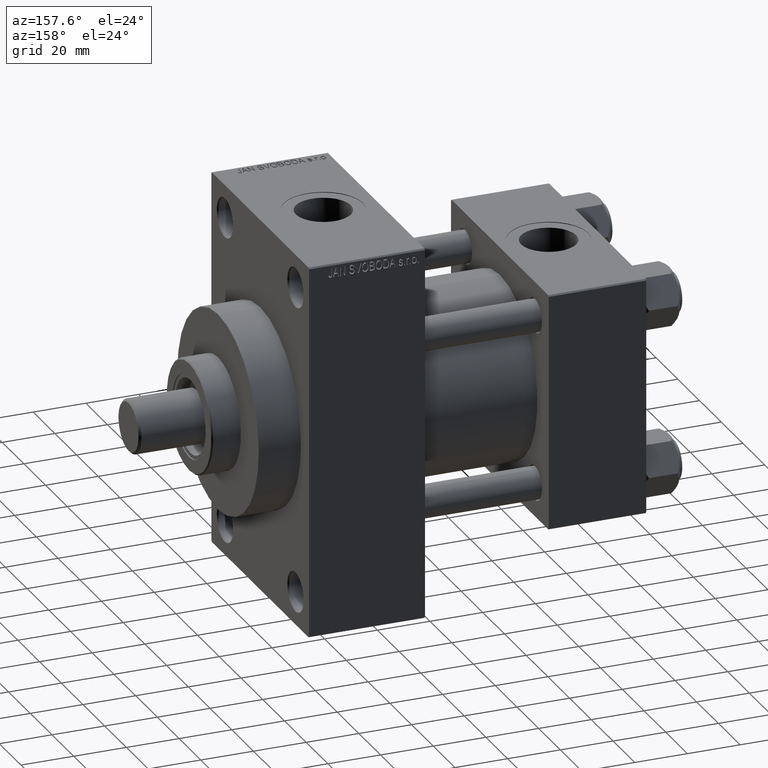
[diagram: clean part render]
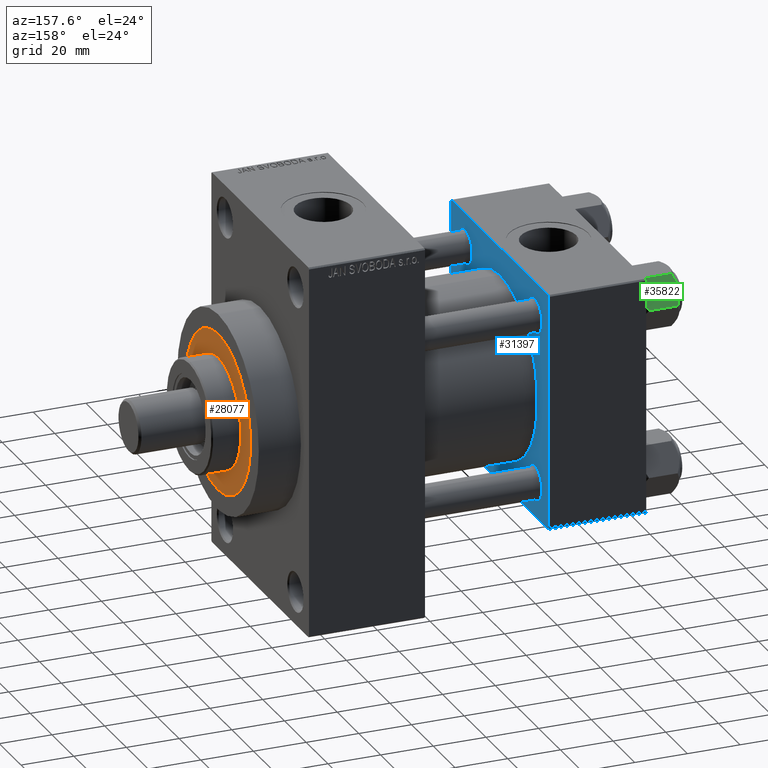
[diagram: same view with three faces highlighted in distinct colors, each labeled with its STEP entity id]
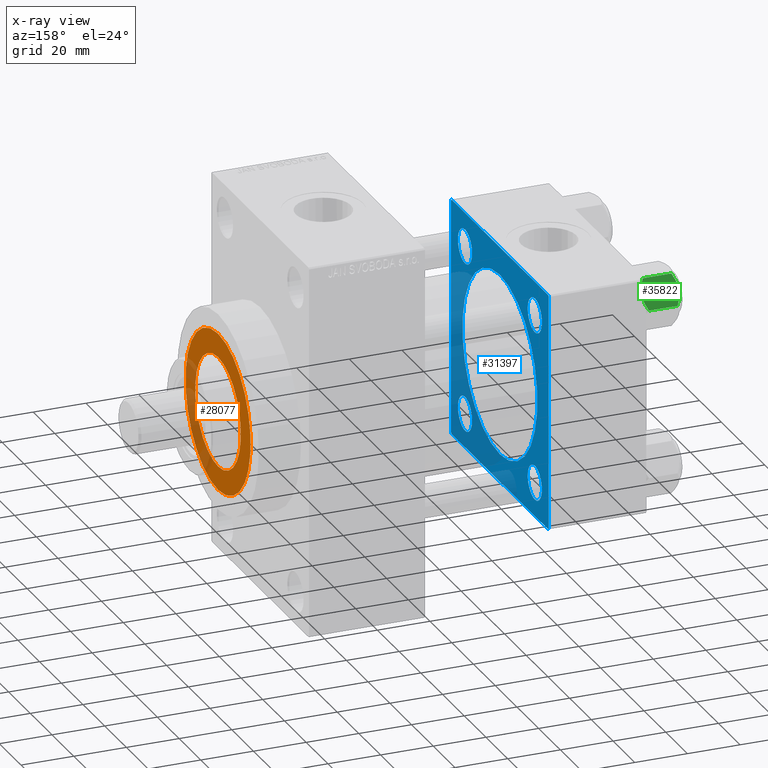
[diagram: x-ray of the same camera — body ghosted, the three highlighted faces saturated]
A machine part, auxiliary view with three faces highlighted in distinct colors.
The next image is the same camera in x-ray (body ghosted, the three faces saturated) — at least one of them is partly hidden behind the body in this view.
Their STEP definitions:

[orange] entity #28077 — the highlighted planar face has unit normal (1, -0, -0).
#646 = DIRECTION ( 'NONE',  ( 1.000000000000000000, 0.000000000000000000, 0.000000000000000000 ) ) ;
#1682 = DIRECTION ( 'NONE',  ( 1.000000000000000000, 0.000000000000000000, -0.000000000000000000 ) ) ;
#3050 = CIRCLE ( 'NONE', #29207, 30.00000000000000000 ) ;
#3537 = EDGE_CURVE ( 'NONE', #19312, #26547, #28069, .T. ) ;
#5543 = DIRECTION ( 'NONE',  ( 0.000000000000000000, 0.000000000000000000, 1.000000000000000000 ) ) ;
#6522 = ORIENTED_EDGE ( 'NONE', *, *, #3537, .F. ) ;
#8582 = CARTESIAN_POINT ( 'NONE',  ( 0.000000000000000000, 0.000000000000000000, 43.25999999999999801 ) ) ;
#8818 = DIRECTION ( 'NONE',  ( 0.000000000000000000, 0.000000000000000000, 1.000000000000000000 ) ) ;
#9635 = EDGE_LOOP ( 'NONE', ( #42970, #45175 ) ) ;
#10939 = DIRECTION ( 'NONE',  ( 0.000000000000000000, 0.000000000000000000, 1.000000000000000000 ) ) ;
#11066 = CARTESIAN_POINT ( 'NONE',  ( 0.000000000000000000, 0.000000000000000000, 43.25999999999999801 ) ) ;
#12624 = CARTESIAN_POINT ( 'NONE',  ( -30.00000000000000000, 0.000000000000000000, 43.25999999999999801 ) ) ;
#13024 = CIRCLE ( 'NONE', #14542, 21.00000000000000000 ) ;
#14445 = DIRECTION ( 'NONE',  ( 0.000000000000000000, 0.000000000000000000, 1.000000000000000000 ) ) ;
#14542 = AXIS2_PLACEMENT_3D ( 'NONE', #8582, #8818, #646 ) ;
#19312 = VERTEX_POINT ( 'NONE', #46845 ) ;
#21436 = EDGE_LOOP ( 'NONE', ( #30685, #6522 ) ) ;
#23399 = FACE_OUTER_BOUND ( 'NONE', #9635, .T. ) ;
#26116 = AXIS2_PLACEMENT_3D ( 'NONE', #41268, #33330, #27033 ) ;
#26547 = VERTEX_POINT ( 'NONE', #40112 ) ;
#27033 = DIRECTION ( 'NONE',  ( 1.000000000000000000, 0.000000000000000000, 0.000000000000000000 ) ) ;
#27720 = PLANE ( 'NONE',  #34194 ) ;
#28069 = CIRCLE ( 'NONE', #33451, 21.00000000000000000 ) ;
#28077 = ADVANCED_FACE ( 'NONE', ( #38096, #23399 ), #27720, .T. ) ;
#29207 = AXIS2_PLACEMENT_3D ( 'NONE', #11066, #14445, #43866 ) ;
#30106 = VERTEX_POINT ( 'NONE', #34161 ) ;
#30685 = ORIENTED_EDGE ( 'NONE', *, *, #46094, .F. ) ;
#31577 = CARTESIAN_POINT ( 'NONE',  ( 0.000000000000000000, 0.000000000000000000, 43.25999999999999801 ) ) ;
#33330 = DIRECTION ( 'NONE',  ( 0.000000000000000000, 0.000000000000000000, 1.000000000000000000 ) ) ;
#33451 = AXIS2_PLACEMENT_3D ( 'NONE', #37443, #10939, #36505 ) ;
#34161 = CARTESIAN_POINT ( 'NONE',  ( 30.00000000000000000, 3.673940397442059178E-15, 43.25999999999999801 ) ) ;
#34194 = AXIS2_PLACEMENT_3D ( 'NONE', #31577, #5543, #1682 ) ;
#34665 = VERTEX_POINT ( 'NONE', #12624 ) ;
#36505 = DIRECTION ( 'NONE',  ( 1.000000000000000000, 0.000000000000000000, 0.000000000000000000 ) ) ;
#37443 = CARTESIAN_POINT ( 'NONE',  ( 0.000000000000000000, 0.000000000000000000, 43.25999999999999801 ) ) ;
#38096 = FACE_BOUND ( 'NONE', #21436, .T. ) ;
#40112 = CARTESIAN_POINT ( 'NONE',  ( -21.00000000000000000, 0.000000000000000000, 43.25999999999999801 ) ) ;
#41268 = CARTESIAN_POINT ( 'NONE',  ( 0.000000000000000000, 0.000000000000000000, 43.25999999999999801 ) ) ;
#42970 = ORIENTED_EDGE ( 'NONE', *, *, #47543, .T. ) ;
#43800 = CIRCLE ( 'NONE', #26116, 30.00000000000000000 ) ;
#43866 = DIRECTION ( 'NONE',  ( 1.000000000000000000, 0.000000000000000000, 0.000000000000000000 ) ) ;
#45175 = ORIENTED_EDGE ( 'NONE', *, *, #46639, .T. ) ;
#46094 = EDGE_CURVE ( 'NONE', #26547, #19312, #13024, .T. ) ;
#46639 = EDGE_CURVE ( 'NONE', #30106, #34665, #43800, .T. ) ;
#46845 = CARTESIAN_POINT ( 'NONE',  ( 21.00000000000000000, 2.571758278209441661E-15, 43.25999999999999801 ) ) ;
#47543 = EDGE_CURVE ( 'NONE', #34665, #30106, #3050, .T. ) ;

[blue] entity #31397 — the highlighted planar face has unit normal (-1, 0, 0).
#3 = LINE ( 'NONE', #18563, #39709 ) ;
#287 = VERTEX_POINT ( 'NONE', #38012 ) ;
#677 = FACE_BOUND ( 'NONE', #33055, .T. ) ;
#1069 = LINE ( 'NONE', #34335, #35992 ) ;
#1385 = VERTEX_POINT ( 'NONE', #37096 ) ;
#1591 = CARTESIAN_POINT ( 'NONE',  ( 37.00000000000000000, -32.14999999999997726, -25.65000000000006253 ) ) ;
#1798 = EDGE_CURVE ( 'NONE', #18763, #35943, #14928, .T. ) ;
#1897 = DIRECTION ( 'NONE',  ( 0.000000000000000000, 0.000000000000000000, 1.000000000000000000 ) ) ;
#1926 = DIRECTION ( 'NONE',  ( 0.000000000000000000, 0.000000000000000000, 1.000000000000000000 ) ) ;
#2030 = EDGE_CURVE ( 'NONE', #24943, #287, #46272, .T. ) ;
#2373 = ORIENTED_EDGE ( 'NONE', *, *, #22286, .F. ) ;
#3282 = CARTESIAN_POINT ( 'NONE',  ( 37.00000000000000000, 32.14999999999999147, 25.64999999999999858 ) ) ;
#3588 = FACE_BOUND ( 'NONE', #45203, .T. ) ;
#4108 = EDGE_LOOP ( 'NONE', ( #4754, #43251 ) ) ;
#4754 = ORIENTED_EDGE ( 'NONE', *, *, #39872, .T. ) ;
#4909 = CARTESIAN_POINT ( 'NONE',  ( 37.00000000000000000, 44.99999999999998579, -44.99999999999998579 ) ) ;
#4939 = VERTEX_POINT ( 'NONE', #35916 ) ;
#5451 = DIRECTION ( 'NONE',  ( -1.000000000000000000, 0.000000000000000000, -0.000000000000000000 ) ) ;
#5457 = EDGE_LOOP ( 'NONE', ( #6555, #45290 ) ) ;
#5626 = DIRECTION ( 'NONE',  ( -1.000000000000000000, 0.000000000000000000, -0.000000000000000000 ) ) ;
#5640 = DIRECTION ( 'NONE',  ( 0.000000000000000000, -1.000000000000000000, -1.541976423090495387E-16 ) ) ;
#5675 = DIRECTION ( 'NONE',  ( -1.000000000000000000, 0.000000000000000000, -0.000000000000000000 ) ) ;
#5883 = VECTOR ( 'NONE', #43689, 1000.000000000000000 ) ;
#5905 = EDGE_CURVE ( 'NONE', #12021, #37893, #3, .T. ) ;
#6315 = EDGE_CURVE ( 'NONE', #29573, #40298, #24296, .T. ) ;
#6555 = ORIENTED_EDGE ( 'NONE', *, *, #19343, .T. ) ;
#7465 = DIRECTION ( 'NONE',  ( -0.000000000000000000, 0.7071067811865474617, 0.7071067811865474617 ) ) ;
#7910 = CARTESIAN_POINT ( 'NONE',  ( 37.00000000000000000, 0.000000000000000000, 0.000000000000000000 ) ) ;
#8672 = EDGE_CURVE ( 'NONE', #31960, #37893, #47299, .T. ) ;
#8980 = ORIENTED_EDGE ( 'NONE', *, *, #8672, .F. ) ;
#9211 = AXIS2_PLACEMENT_3D ( 'NONE', #9407, #10111, #1926 ) ;
#9407 = CARTESIAN_POINT ( 'NONE',  ( 37.00000000000000000, 32.14999999999999147, -32.15000000000000568 ) ) ;
#9580 = EDGE_CURVE ( 'NONE', #1385, #43032, #23640, .T. ) ;
#10111 = DIRECTION ( 'NONE',  ( -1.000000000000000000, 0.000000000000000000, -0.000000000000000000 ) ) ;
#10343 = AXIS2_PLACEMENT_3D ( 'NONE', #42962, #14974, #44151 ) ;
#10409 = EDGE_CURVE ( 'NONE', #43155, #24943, #1069, .T. ) ;
#10819 = FACE_BOUND ( 'NONE', #39534, .T. ) ;
#11817 = CIRCLE ( 'NONE', #18788, 6.500000000000005329 ) ;
#11905 = CARTESIAN_POINT ( 'NONE',  ( 37.00000000000000000, -45.00000000000000711, 45.00000000000000000 ) ) ;
#11950 = AXIS2_PLACEMENT_3D ( 'NONE', #38482, #5451, #15824 ) ;
#12021 = VERTEX_POINT ( 'NONE', #44358 ) ;
#12111 = CARTESIAN_POINT ( 'NONE',  ( 37.00000000000000000, 32.14999999999999147, 32.15000000000000568 ) ) ;
#12383 = LINE ( 'NONE', #11905, #26782 ) ;
#12866 = DIRECTION ( 'NONE',  ( 0.000000000000000000, 7.709882115452476934E-17, -1.000000000000000000 ) ) ;
#13704 = CARTESIAN_POINT ( 'NONE',  ( 37.00000000000000000, 44.99999999999998579, -44.49999999999995737 ) ) ;
#14192 = CARTESIAN_POINT ( 'NONE',  ( 37.00000000000000000, -45.00000000000000711, 44.49999999999997158 ) ) ;
#14415 = CARTESIAN_POINT ( 'NONE',  ( 37.00000000000000000, 32.14999999999999147, -25.64999999999999858 ) ) ;
#14928 = CIRCLE ( 'NONE', #31872, 6.499999999999950262 ) ;
#14974 = DIRECTION ( 'NONE',  ( 1.000000000000000000, -0.000000000000000000, 0.000000000000000000 ) ) ;
#15137 = DIRECTION ( 'NONE',  ( -1.000000000000000000, 0.000000000000000000, -0.000000000000000000 ) ) ;
#15382 = DIRECTION ( 'NONE',  ( -0.000000000000000000, 0.000000000000000000, 1.000000000000000000 ) ) ;
#15824 = DIRECTION ( 'NONE',  ( 0.000000000000000000, 0.000000000000000000, 1.000000000000000000 ) ) ;
#16481 = LINE ( 'NONE', #4909, #39262 ) ;
#17476 = AXIS2_PLACEMENT_3D ( 'NONE', #38659, #5626, #20341 ) ;
#17540 = AXIS2_PLACEMENT_3D ( 'NONE', #34696, #28169, #31069 ) ;
#17822 = DIRECTION ( 'NONE',  ( -0.000000000000000000, -0.7071067811865425767, -0.7071067811865524577 ) ) ;
#17929 = EDGE_CURVE ( 'NONE', #35943, #18763, #26119, .T. ) ;
#18290 = PLANE ( 'NONE',  #31898 ) ;
#18532 = ORIENTED_EDGE ( 'NONE', *, *, #27541, .T. ) ;
#18563 = CARTESIAN_POINT ( 'NONE',  ( 37.00000000000000000, 44.99999999999998579, -44.49999999999998579 ) ) ;
#18763 = VERTEX_POINT ( 'NONE', #1591 ) ;
#18788 = AXIS2_PLACEMENT_3D ( 'NONE', #12111, #44440, #26351 ) ;
#19343 = EDGE_CURVE ( 'NONE', #26408, #39964, #42315, .T. ) ;
#20002 = CARTESIAN_POINT ( 'NONE',  ( 37.00000000000000000, -32.14999999999997726, 32.15000000000001279 ) ) ;
#20341 = DIRECTION ( 'NONE',  ( 0.000000000000000000, 0.000000000000000000, 1.000000000000000000 ) ) ;
#20532 = EDGE_CURVE ( 'NONE', #12021, #47658, #16481, .T. ) ;
#21272 = CARTESIAN_POINT ( 'NONE',  ( 37.00000000000000000, -32.14999999999997726, -32.15000000000001279 ) ) ;
#22275 = AXIS2_PLACEMENT_3D ( 'NONE', #46174, #5675, #31718 ) ;
#22286 = EDGE_CURVE ( 'NONE', #31888, #4939, #36274, .T. ) ;
#22354 = EDGE_CURVE ( 'NONE', #31960, #43155, #46262, .T. ) ;
#22921 = DIRECTION ( 'NONE',  ( 0.000000000000000000, 0.000000000000000000, 1.000000000000000000 ) ) ;
#23277 = CARTESIAN_POINT ( 'NONE',  ( 37.00000000000000000, -44.49999999999998579, -45.00000000000000000 ) ) ;
#23631 = VERTEX_POINT ( 'NONE', #41418 ) ;
#23640 = CIRCLE ( 'NONE', #17476, 6.499999999999950262 ) ;
#23698 = AXIS2_PLACEMENT_3D ( 'NONE', #20002, #31310, #1897 ) ;
#24233 = ORIENTED_EDGE ( 'NONE', *, *, #17929, .T. ) ;
#24296 = CIRCLE ( 'NONE', #11950, 6.500000000000005329 ) ;
#24943 = VERTEX_POINT ( 'NONE', #29275 ) ;
#26119 = CIRCLE ( 'NONE', #22275, 6.499999999999950262 ) ;
#26351 = DIRECTION ( 'NONE',  ( 0.000000000000000000, 0.000000000000000000, 1.000000000000000000 ) ) ;
#26408 = VERTEX_POINT ( 'NONE', #46146 ) ;
#26782 = VECTOR ( 'NONE', #12866, 1000.000000000000000 ) ;
#27541 = EDGE_CURVE ( 'NONE', #40298, #29573, #11817, .T. ) ;
#28150 = ORIENTED_EDGE ( 'NONE', *, *, #30385, .T. ) ;
#28169 = DIRECTION ( 'NONE',  ( -1.000000000000000000, 0.000000000000000000, -0.000000000000000000 ) ) ;
#28554 = VECTOR ( 'NONE', #46500, 1000.000000000000114 ) ;
#28975 = CARTESIAN_POINT ( 'NONE',  ( 37.00000000000000000, 44.99999999999998579, 45.00000000000001421 ) ) ;
#29275 = CARTESIAN_POINT ( 'NONE',  ( 37.00000000000000000, -44.49999999999995737, 45.00000000000000000 ) ) ;
#29573 = VERTEX_POINT ( 'NONE', #41582 ) ;
#30137 = DIRECTION ( 'NONE',  ( 1.000000000000000000, -0.000000000000000000, 0.000000000000000000 ) ) ;
#30385 = EDGE_CURVE ( 'NONE', #23631, #47658, #30728, .T. ) ;
#30471 = ORIENTED_EDGE ( 'NONE', *, *, #1798, .T. ) ;
#30728 = LINE ( 'NONE', #23277, #41074 ) ;
#31020 = ORIENTED_EDGE ( 'NONE', *, *, #5905, .T. ) ;
#31069 = DIRECTION ( 'NONE',  ( 0.000000000000000000, 0.000000000000000000, 1.000000000000000000 ) ) ;
#31129 = CIRCLE ( 'NONE', #10343, 34.50000000000000000 ) ;
#31310 = DIRECTION ( 'NONE',  ( -1.000000000000000000, 0.000000000000000000, -0.000000000000000000 ) ) ;
#31397 = ADVANCED_FACE ( 'NONE', ( #10819, #33008, #37322, #3588, #677, #36864 ), #18290, .F. ) ;
#31718 = DIRECTION ( 'NONE',  ( 0.000000000000000000, 0.000000000000000000, 1.000000000000000000 ) ) ;
#31872 = AXIS2_PLACEMENT_3D ( 'NONE', #21272, #35004, #31877 ) ;
#31877 = DIRECTION ( 'NONE',  ( 0.000000000000000000, 0.000000000000000000, 1.000000000000000000 ) ) ;
#31888 = VERTEX_POINT ( 'NONE', #31939 ) ;
#31898 = AXIS2_PLACEMENT_3D ( 'NONE', #7910, #15137, #15382 ) ;
#31939 = CARTESIAN_POINT ( 'NONE',  ( 37.00000000000000000, -2.602085213965210642E-15, 34.50000000000000000 ) ) ;
#31960 = VERTEX_POINT ( 'NONE', #38932 ) ;
#32519 = CARTESIAN_POINT ( 'NONE',  ( 37.00000000000000000, -32.14999999999997726, -38.64999999999996305 ) ) ;
#33008 = FACE_BOUND ( 'NONE', #5457, .T. ) ;
#33055 = EDGE_LOOP ( 'NONE', ( #2373, #38224 ) ) ;
#33078 = EDGE_CURVE ( 'NONE', #4939, #31888, #31129, .T. ) ;
#33445 = CARTESIAN_POINT ( 'NONE',  ( 37.00000000000000000, 44.49999999999998579, 45.00000000000001421 ) ) ;
#33997 = CARTESIAN_POINT ( 'NONE',  ( 37.00000000000000000, -2.602085213965210642E-15, 0.000000000000000000 ) ) ;
#34335 = CARTESIAN_POINT ( 'NONE',  ( 37.00000000000000000, 44.99999999999998579, 45.00000000000001421 ) ) ;
#34696 = CARTESIAN_POINT ( 'NONE',  ( 37.00000000000000000, 32.14999999999999147, -32.15000000000000568 ) ) ;
#35004 = DIRECTION ( 'NONE',  ( -1.000000000000000000, 0.000000000000000000, -0.000000000000000000 ) ) ;
#35639 = ORIENTED_EDGE ( 'NONE', *, *, #10409, .T. ) ;
#35916 = CARTESIAN_POINT ( 'NONE',  ( 37.00000000000000000, 1.622946243093158675E-15, -34.50000000000000000 ) ) ;
#35932 = DIRECTION ( 'NONE',  ( 0.000000000000000000, -1.000000000000000000, -1.541976423090495633E-16 ) ) ;
#35943 = VERTEX_POINT ( 'NONE', #32519 ) ;
#35992 = VECTOR ( 'NONE', #5640, 1000.000000000000000 ) ;
#36274 = CIRCLE ( 'NONE', #41622, 34.50000000000000000 ) ;
#36864 = FACE_OUTER_BOUND ( 'NONE', #37712, .T. ) ;
#37096 = CARTESIAN_POINT ( 'NONE',  ( 37.00000000000000000, -32.14999999999997726, 38.64999999999996305 ) ) ;
#37322 = FACE_BOUND ( 'NONE', #4108, .T. ) ;
#37712 = EDGE_LOOP ( 'NONE', ( #40673, #31020, #8980, #44881, #35639, #38765, #38704, #28150 ) ) ;
#37893 = VERTEX_POINT ( 'NONE', #13704 ) ;
#38012 = CARTESIAN_POINT ( 'NONE',  ( 37.00000000000000000, -45.00000000000000711, 44.49999999999997158 ) ) ;
#38224 = ORIENTED_EDGE ( 'NONE', *, *, #33078, .F. ) ;
#38482 = CARTESIAN_POINT ( 'NONE',  ( 37.00000000000000000, 32.14999999999999147, 32.15000000000000568 ) ) ;
#38659 = CARTESIAN_POINT ( 'NONE',  ( 37.00000000000000000, -32.14999999999997726, 32.15000000000001279 ) ) ;
#38704 = ORIENTED_EDGE ( 'NONE', *, *, #43499, .T. ) ;
#38765 = ORIENTED_EDGE ( 'NONE', *, *, #2030, .T. ) ;
#38932 = CARTESIAN_POINT ( 'NONE',  ( 37.00000000000000000, 44.99999999999998579, 44.50000000000001421 ) ) ;
#38997 = CARTESIAN_POINT ( 'NONE',  ( 37.00000000000000000, -44.49999999999995737, -45.00000000000000000 ) ) ;
#39262 = VECTOR ( 'NONE', #35932, 1000.000000000000000 ) ;
#39534 = EDGE_LOOP ( 'NONE', ( #24233, #30471 ) ) ;
#39709 = VECTOR ( 'NONE', #7465, 1000.000000000000114 ) ;
#39836 = EDGE_CURVE ( 'NONE', #39964, #26408, #41385, .T. ) ;
#39872 = EDGE_CURVE ( 'NONE', #43032, #1385, #44489, .T. ) ;
#39964 = VERTEX_POINT ( 'NONE', #14415 ) ;
#40298 = VERTEX_POINT ( 'NONE', #3282 ) ;
#40673 = ORIENTED_EDGE ( 'NONE', *, *, #20532, .F. ) ;
#41074 = VECTOR ( 'NONE', #44731, 1000.000000000000114 ) ;
#41077 = VECTOR ( 'NONE', #17822, 1000.000000000000114 ) ;
#41385 = CIRCLE ( 'NONE', #17540, 6.500000000000005329 ) ;
#41418 = CARTESIAN_POINT ( 'NONE',  ( 37.00000000000000000, -45.00000000000000000, -44.49999999999995737 ) ) ;
#41582 = CARTESIAN_POINT ( 'NONE',  ( 37.00000000000000000, 32.14999999999999147, 38.65000000000001279 ) ) ;
#41622 = AXIS2_PLACEMENT_3D ( 'NONE', #33997, #30137, #22921 ) ;
#42173 = CARTESIAN_POINT ( 'NONE',  ( 37.00000000000000000, 44.49999999999998579, 45.00000000000001421 ) ) ;
#42315 = CIRCLE ( 'NONE', #9211, 6.500000000000005329 ) ;
#42962 = CARTESIAN_POINT ( 'NONE',  ( 37.00000000000000000, -2.602085213965210642E-15, 0.000000000000000000 ) ) ;
#43032 = VERTEX_POINT ( 'NONE', #47184 ) ;
#43155 = VERTEX_POINT ( 'NONE', #33445 ) ;
#43251 = ORIENTED_EDGE ( 'NONE', *, *, #9580, .T. ) ;
#43499 = EDGE_CURVE ( 'NONE', #287, #23631, #12383, .T. ) ;
#43689 = DIRECTION ( 'NONE',  ( 0.000000000000000000, 0.000000000000000000, -1.000000000000000000 ) ) ;
#44151 = DIRECTION ( 'NONE',  ( 0.000000000000000000, 0.000000000000000000, 1.000000000000000000 ) ) ;
#44358 = CARTESIAN_POINT ( 'NONE',  ( 37.00000000000000000, 44.49999999999998579, -44.99999999999998579 ) ) ;
#44440 = DIRECTION ( 'NONE',  ( -1.000000000000000000, 0.000000000000000000, -0.000000000000000000 ) ) ;
#44489 = CIRCLE ( 'NONE', #23698, 6.499999999999950262 ) ;
#44657 = ORIENTED_EDGE ( 'NONE', *, *, #6315, .T. ) ;
#44731 = DIRECTION ( 'NONE',  ( 0.000000000000000000, 0.7071067811865474617, -0.7071067811865474617 ) ) ;
#44881 = ORIENTED_EDGE ( 'NONE', *, *, #22354, .T. ) ;
#45203 = EDGE_LOOP ( 'NONE', ( #18532, #44657 ) ) ;
#45290 = ORIENTED_EDGE ( 'NONE', *, *, #39836, .T. ) ;
#46146 = CARTESIAN_POINT ( 'NONE',  ( 37.00000000000000000, 32.14999999999999147, -38.65000000000001279 ) ) ;
#46174 = CARTESIAN_POINT ( 'NONE',  ( 37.00000000000000000, -32.14999999999997726, -32.15000000000001279 ) ) ;
#46262 = LINE ( 'NONE', #42173, #28554 ) ;
#46272 = LINE ( 'NONE', #14192, #41077 ) ;
#46500 = DIRECTION ( 'NONE',  ( 0.000000000000000000, -0.7071067811865474617, 0.7071067811865474617 ) ) ;
#47184 = CARTESIAN_POINT ( 'NONE',  ( 37.00000000000000000, -32.14999999999997726, 25.65000000000006253 ) ) ;
#47299 = LINE ( 'NONE', #28975, #5883 ) ;
#47658 = VERTEX_POINT ( 'NONE', #38997 ) ;

[green] entity #35822 — the highlighted planar face has unit normal (0, -0.866, -0.5).
#435 = ORIENTED_EDGE ( 'NONE', *, *, #14625, .F. ) ;
#524 = CARTESIAN_POINT ( 'NONE',  ( 9.227666995912100489, -4.143642311704125447, -13.96005881939309212 ) ) ;
#1234 = CARTESIAN_POINT ( 'NONE',  ( 8.715000000000003411, -5.031607595987592774, -14.00000000000000000 ) ) ;
#1293 = EDGE_CURVE ( 'NONE', #46634, #42587, #13900, .T. ) ;
#2228 = EDGE_CURVE ( 'NONE', #42587, #22099, #38032, .T. ) ;
#2423 = CARTESIAN_POINT ( 'NONE',  ( 5.810000000000000497, -10.06321519197517667, -12.44321519197518811 ) ) ;
#3275 = CARTESIAN_POINT ( 'NONE',  ( 7.455303369716807182, -7.213466161761383333, -0.3002673809867365540 ) ) ;
#3517 = CARTESIAN_POINT ( 'NONE',  ( 8.715000000000003411, -5.031607595987592774, 0.000000000000000000 ) ) ;
#4351 = CARTESIAN_POINT ( 'NONE',  ( 10.69662495661650503, -1.599332489581334560, -0.7114554706434483844 ) ) ;
#5773 = CARTESIAN_POINT ( 'NONE',  ( 6.265018354709780191, -9.275100283241448196, -12.89823354668505395 ) ) ;
#6097 = CARTESIAN_POINT ( 'NONE',  ( 5.810000000000000497, -10.06321519197517667, -1.556784808024811895 ) ) ;
#6256 = CARTESIAN_POINT ( 'NONE',  ( 6.733375043383495573, -8.463882702393842550, -13.28854452935654962 ) ) ;
#7367 = CARTESIAN_POINT ( 'NONE',  ( 8.460569896449618099, -5.472293462311865753, 3.427848222766236415E-15 ) ) ;
#7729 = FACE_OUTER_BOUND ( 'NONE', #33974, .T. ) ;
#7958 = CARTESIAN_POINT ( 'NONE',  ( 8.715000000000003411, -5.031607595987592774, 0.000000000000000000 ) ) ;
#8268 = EDGE_CURVE ( 'NONE', #13828, #9245, #28943, .T. ) ;
#9245 = VERTEX_POINT ( 'NONE', #30755 ) ;
#12425 = ORIENTED_EDGE ( 'NONE', *, *, #1293, .F. ) ;
#12933 = CARTESIAN_POINT ( 'NONE',  ( 5.810000000000000497, -10.06321519197517667, -1.556784808024811895 ) ) ;
#13478 = CARTESIAN_POINT ( 'NONE',  ( 8.209704053696569304, -5.906805847843727086, -14.00000000000000178 ) ) ;
#13828 = VERTEX_POINT ( 'NONE', #34229 ) ;
#13900 = B_SPLINE_CURVE_WITH_KNOTS ( 'NONE', 3,
 ( #15668, #13478, #41939, #6256, #5773, #39286 ),
 .UNSPECIFIED., .F., .F.,
 ( 4, 2, 4 ),
 ( 0.006022845781655588975, 0.009013049135303631554, 0.01200325248895167674 ),
 .UNSPECIFIED. ) ;
#14625 = EDGE_CURVE ( 'NONE', #44861, #46634, #36581, .T. ) ;
#14724 = PLANE ( 'NONE',  #23575 ) ;
#14749 = CARTESIAN_POINT ( 'NONE',  ( 10.69859855102500923, -1.595914123792265160, -13.28585617404753627 ) ) ;
#15189 = CARTESIAN_POINT ( 'NONE',  ( 11.62000000000000099, -1.813166800014576593E-15, -14.00000000000000000 ) ) ;
#15221 = CARTESIAN_POINT ( 'NONE',  ( 11.62000000000000099, -1.689012838886770227E-15, -12.44321519197518633 ) ) ;
#15546 = B_SPLINE_CURVE_WITH_KNOTS ( 'NONE', 3,
 ( #12933, #27640, #42344, #3275, #22088, #21374, #7367, #3517 ),
 .UNSPECIFIED., .F., .F.,
 ( 4, 2, 2, 4 ),
 ( 2.544312114902182352E-07, 0.003011550106433539056, 0.004517197944044561847, 0.006022845781655586372 ),
 .UNSPECIFIED. ) ;
#15668 = CARTESIAN_POINT ( 'NONE',  ( 8.715000000000003411, -5.031607595987592774, -14.00000000000000000 ) ) ;
#15903 = CARTESIAN_POINT ( 'NONE',  ( 11.16498164529022574, -0.7881149087337312453, -1.101766453314952487 ) ) ;
#16289 = CARTESIAN_POINT ( 'NONE',  ( 11.62000000000000099, -1.813166800014576593E-15, -14.00000000000000000 ) ) ;
#16771 = DIRECTION ( 'NONE',  ( -0.000000000000000000, -0.000000000000000000, 1.000000000000000000 ) ) ;
#17951 = EDGE_CURVE ( 'NONE', #44861, #9245, #27374, .T. ) ;
#19053 = CARTESIAN_POINT ( 'NONE',  ( 9.220295946303432189, -4.156409344131454020, 3.521962994683380021E-15 ) ) ;
#21374 = CARTESIAN_POINT ( 'NONE',  ( 8.202333004087897450, -5.919572880271052995, -0.03994118060690592109 ) ) ;
#21533 = CARTESIAN_POINT ( 'NONE',  ( 9.729165168613651105, -3.275021996682085046, -13.80960203119265906 ) ) ;
#21878 = ORIENTED_EDGE ( 'NONE', *, *, #8268, .F. ) ;
#22088 = CARTESIAN_POINT ( 'NONE',  ( 7.700834831386344170, -6.788193195293096061, -0.1903979688073396681 ) ) ;
#22099 = VERTEX_POINT ( 'NONE', #6097 ) ;
#22680 = CARTESIAN_POINT ( 'NONE',  ( 9.716999946243698005, -3.296092779912227932, -0.1545239700039822972 ) ) ;
#23403 = VECTOR ( 'NONE', #34416, 1000.000000000000000 ) ;
#23575 = AXIS2_PLACEMENT_3D ( 'NONE', #15189, #44134, #44836 ) ;
#26747 = CARTESIAN_POINT ( 'NONE',  ( 11.62000000000000099, -1.924525737834042474E-15, -1.556784808024813893 ) ) ;
#27374 = LINE ( 'NONE', #16289, #46889 ) ;
#27640 = CARTESIAN_POINT ( 'NONE',  ( 6.265545725125285514, -9.274186850887382150, -1.101239082899530430 ) ) ;
#28943 = B_SPLINE_CURVE_WITH_KNOTS ( 'NONE', 3,
 ( #7958, #19053, #22680, #4351, #15903, #26747 ),
 .UNSPECIFIED., .F., .F.,
 ( 4, 2, 4 ),
 ( 0.006022845781655586372, 0.009013049135303633289, 0.01200325248895168020 ),
 .UNSPECIFIED. ) ;
#29220 = CARTESIAN_POINT ( 'NONE',  ( 11.16445427487472131, -0.7890283410877986237, -12.89876091710047135 ) ) ;
#29412 = EDGE_CURVE ( 'NONE', #22099, #13828, #15546, .T. ) ;
#29697 = CARTESIAN_POINT ( 'NONE',  ( 8.715000000000003411, -5.031607595987592774, -14.00000000000000000 ) ) ;
#30755 = CARTESIAN_POINT ( 'NONE',  ( 11.62000000000000099, -1.924525737834042474E-15, -1.556784808024813893 ) ) ;
#33319 = CARTESIAN_POINT ( 'NONE',  ( 9.974696630283190757, -2.849749030213793777, -13.69973261901325934 ) ) ;
#33974 = EDGE_LOOP ( 'NONE', ( #435, #39731, #21878, #45210, #44658, #12425 ) ) ;
#34229 = CARTESIAN_POINT ( 'NONE',  ( 8.715000000000003411, -5.031607595987592774, 0.000000000000000000 ) ) ;
#34416 = DIRECTION ( 'NONE',  ( -0.000000000000000000, -0.000000000000000000, 1.000000000000000000 ) ) ;
#35822 = ADVANCED_FACE ( 'NONE', ( #7729 ), #14724, .F. ) ;
#36581 = B_SPLINE_CURVE_WITH_KNOTS ( 'NONE', 3,
 ( #15221, #29220, #14749, #33319, #21533, #524, #40792, #29697 ),
 .UNSPECIFIED., .F., .F.,
 ( 4, 2, 2, 4 ),
 ( 2.544312114904007178E-07, 0.003011550106433541225, 0.004517197944044565316, 0.006022845781655588975 ),
 .UNSPECIFIED. ) ;
#37559 = CARTESIAN_POINT ( 'NONE',  ( 5.810000000000000497, -10.06321519197517667, -14.00000000000000000 ) ) ;
#38032 = LINE ( 'NONE', #37559, #23403 ) ;
#39286 = CARTESIAN_POINT ( 'NONE',  ( 5.810000000000000497, -10.06321519197517667, -12.44321519197518811 ) ) ;
#39731 = ORIENTED_EDGE ( 'NONE', *, *, #17951, .T. ) ;
#40792 = CARTESIAN_POINT ( 'NONE',  ( 8.969430103550381617, -4.590921729663316242, -14.00000000000000178 ) ) ;
#41939 = CARTESIAN_POINT ( 'NONE',  ( 7.713000053756305263, -6.767122412062954062, -13.84547602999601956 ) ) ;
#42344 = CARTESIAN_POINT ( 'NONE',  ( 6.731401448974991375, -8.467301068182914392, -0.7141438259524641730 ) ) ;
#42587 = VERTEX_POINT ( 'NONE', #2423 ) ;
#42668 = CARTESIAN_POINT ( 'NONE',  ( 11.62000000000000099, -1.689012838886770227E-15, -12.44321519197518633 ) ) ;
#44134 = DIRECTION ( 'NONE',  ( -0.8660254037844385966, 0.5000000000000002220, 0.000000000000000000 ) ) ;
#44658 = ORIENTED_EDGE ( 'NONE', *, *, #2228, .F. ) ;
#44836 = DIRECTION ( 'NONE',  ( -0.5000000000000001110, -0.8660254037844384856, 0.000000000000000000 ) ) ;
#44861 = VERTEX_POINT ( 'NONE', #42668 ) ;
#45210 = ORIENTED_EDGE ( 'NONE', *, *, #29412, .F. ) ;
#46634 = VERTEX_POINT ( 'NONE', #1234 ) ;
#46889 = VECTOR ( 'NONE', #16771, 1000.000000000000000 ) ;